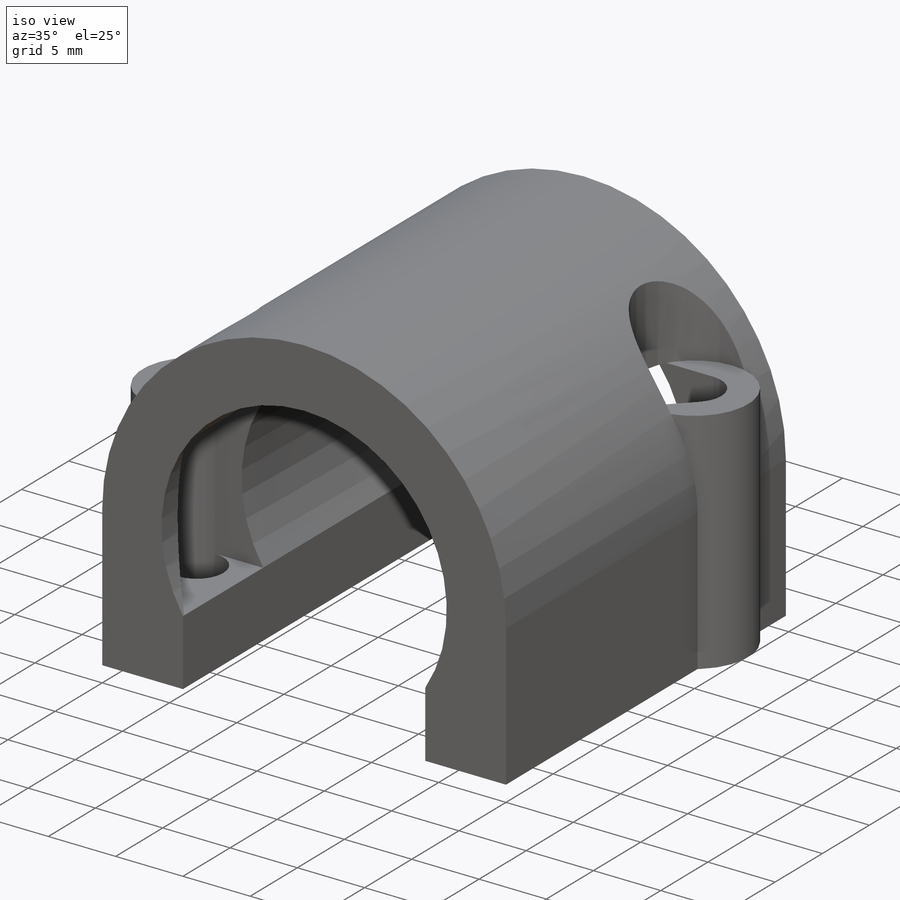
[diagram: iso view]
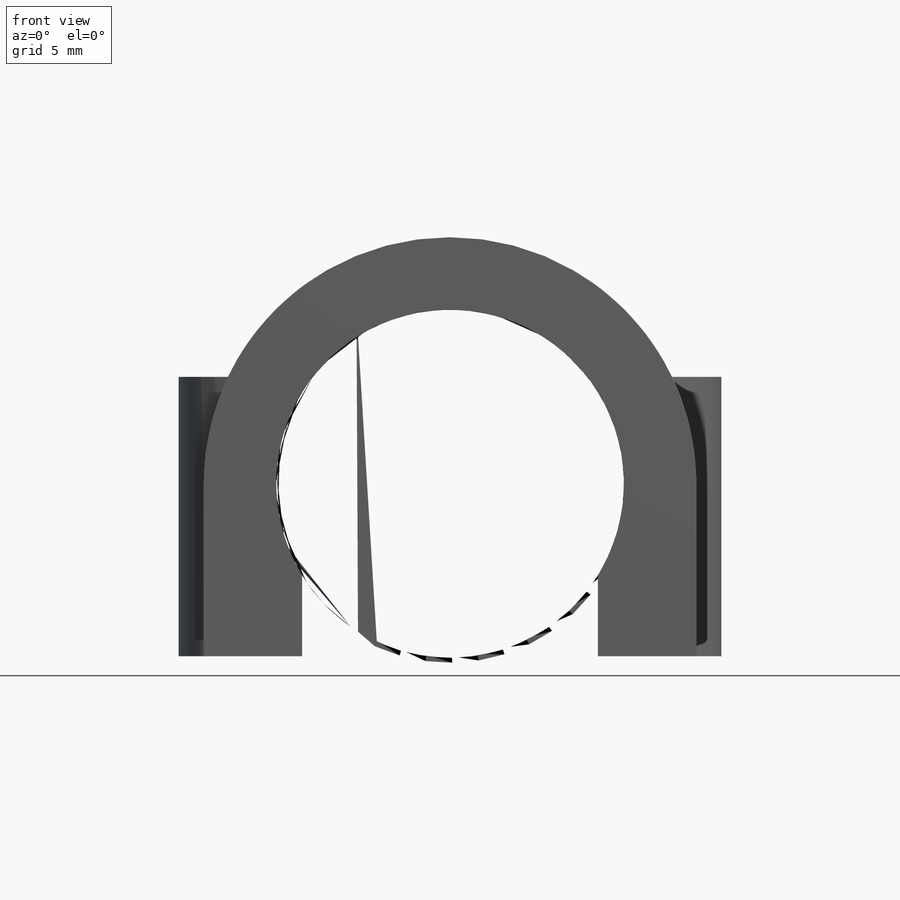
[diagram: front view]
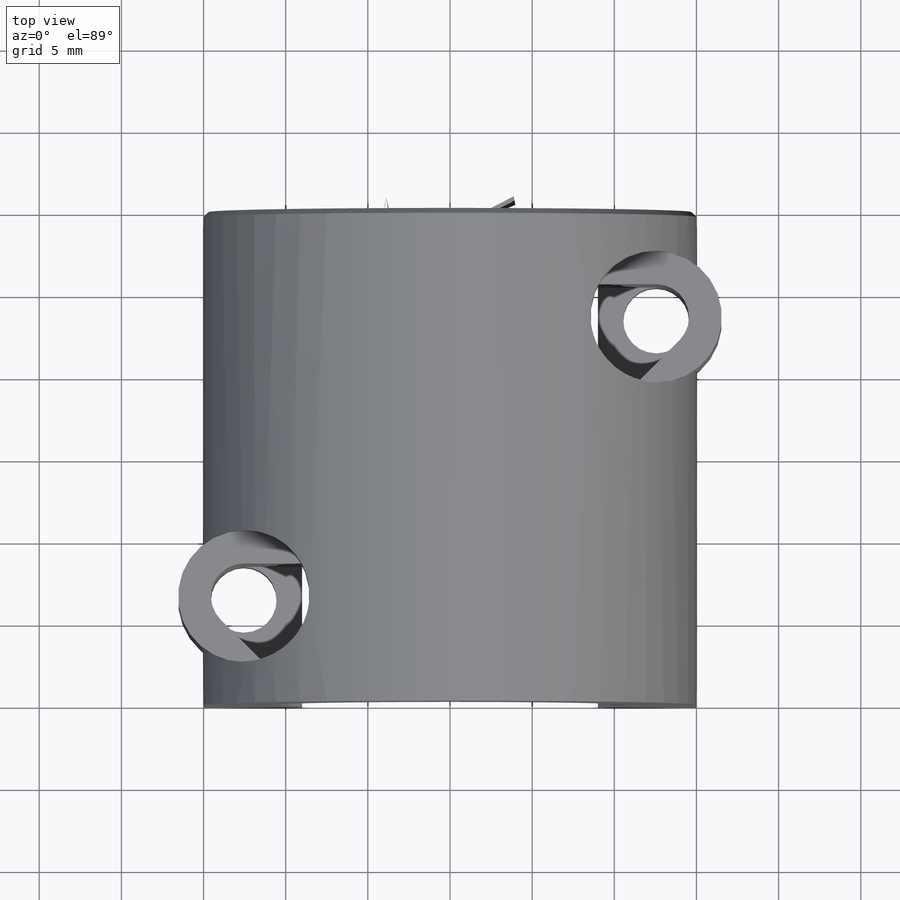
[diagram: top view]
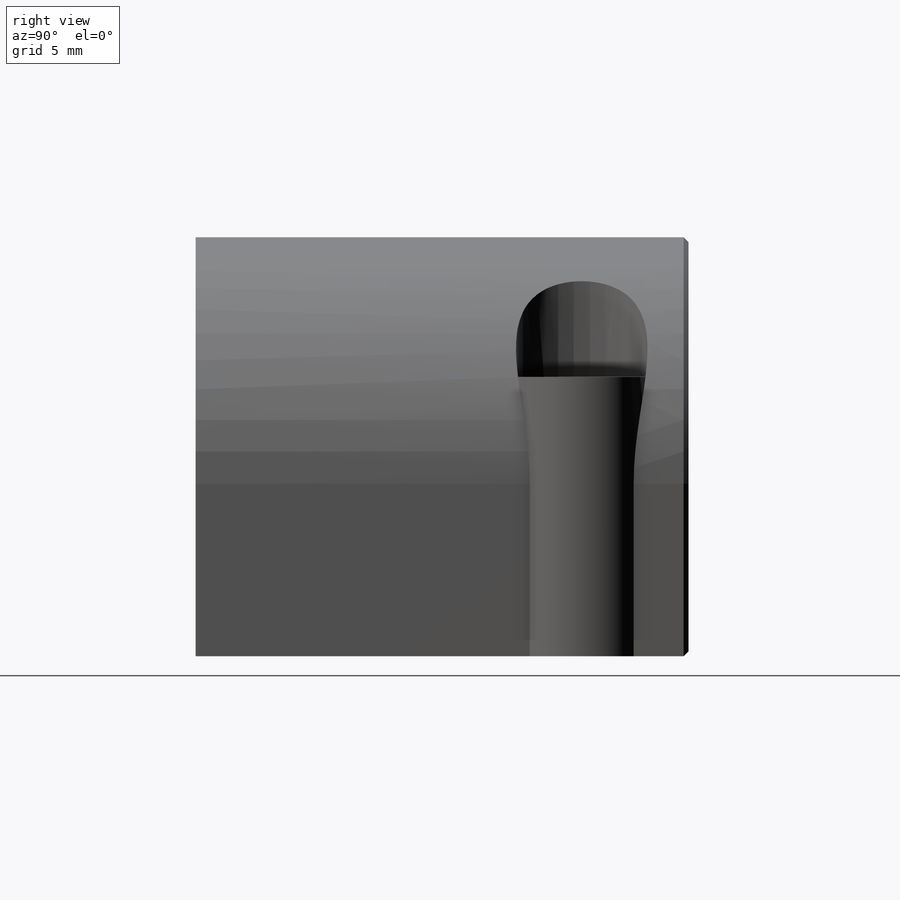
[diagram: right view]
SOLIDWORKS PART (.sldprt)
format: sldprt  version: not decoded by parser v0  size: 348,672 bytes
history: native  units: mm
features: sketch x6, cut_extrude x4, extrude x2, material x1, chamfer x1 (+13 scaffold rows collapsed)
feature tree (27):
  scaffold x13  (default folders/planes/origin — collapsed)
  material  "Custom Plastic"
  sketch  "Sketch1"  dims[c1.D1=21.0mm c1.D2=4.5mm c1.D3=~5.418267mm c2.D2=4.5mm c2.D3=18.0mm]
  extrude  "Boss-Extrude1"  Depth=30mm
  sketch  "Sketch4"  dims[D1=22.0mm D2=3.1mm D3=8.0mm D4=17.0mm]
  extrude  "Boss-Extrude2"  Depth=17mm
  sketch  "Sketch2"  dims[c1.D1=3.3mm c1.D2=22.0mm c1.D4=4.0mm c1.D3=17.0mm c2.D4=10.5mm]
  cut_extrude  "Cut-Extrude7"  [1 undecoded]
  sketch  "Sketch3"  dims[D1=8.0mm]
  cut_extrude  "Cut-Extrude2"  Depth=17mm
  sketch  "Sketch5"  dims[D1=10.6mm D2=18.0mm]
  cut_extrude  "Cut-Extrude3"  [1 undecoded]
  sketch  "Sketch6"  dims[c1.D1=~2.975592mm c2.D1=45.0deg c2.D2=~3.153003mm c3.D2=45.0deg]
  cut_extrude  "Cut-Extrude8"  [1 undecoded]
  chamfer  "Chamfer1"  Distance=0.3mm Angle=45deg
decode coverage: 10 of 13 modeling features carry decoded parameters
note: ~ marks probable driven/reference dimensions
note: 3 parameter values undecoded
summary: no parameter record found for 3 features
note: suppression state not decoded; provenance and decode notes live in map.json
